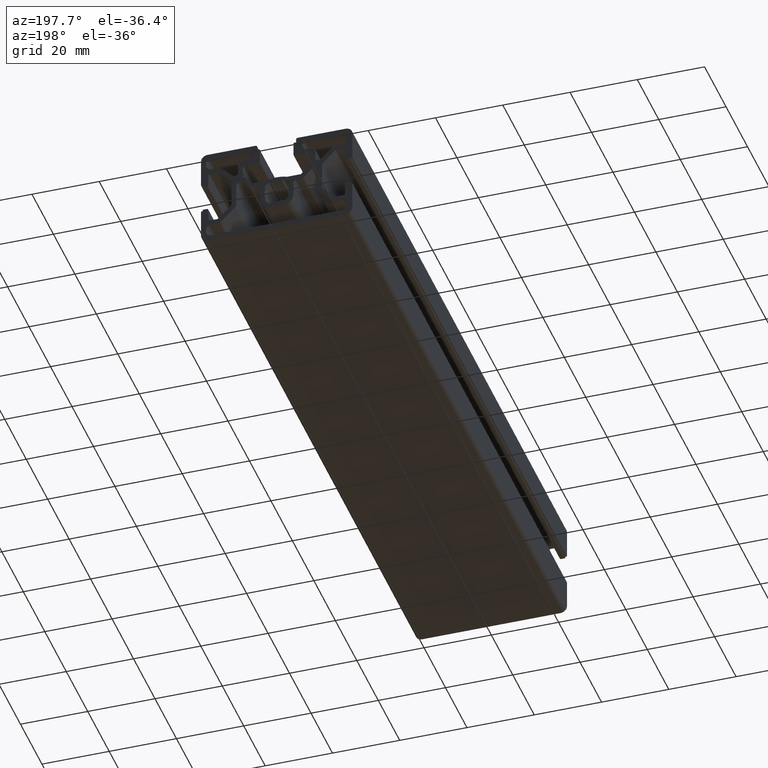
[diagram: clean part render]
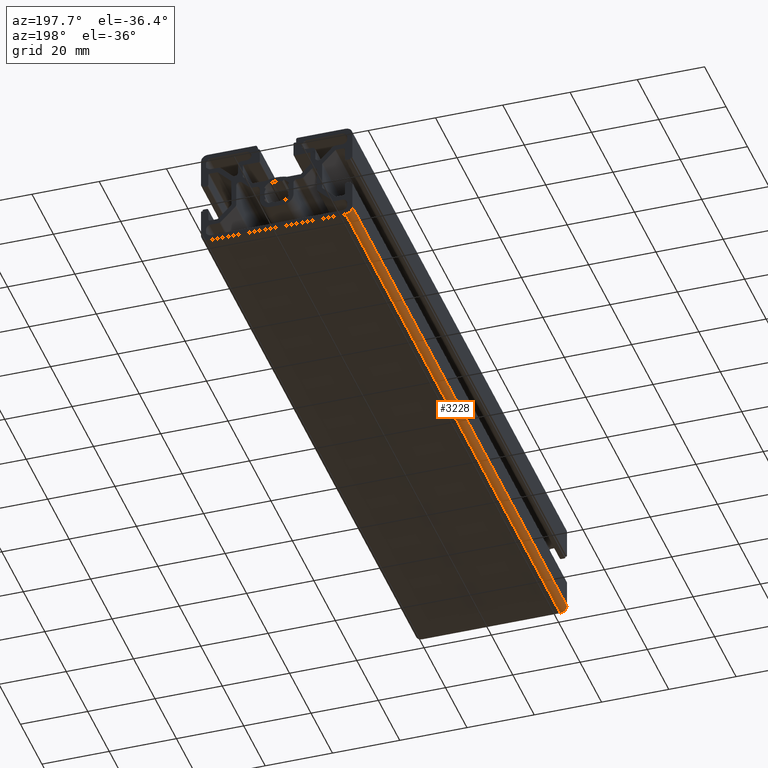
[diagram: same view with one face highlighted and labeled with its STEP entity id]
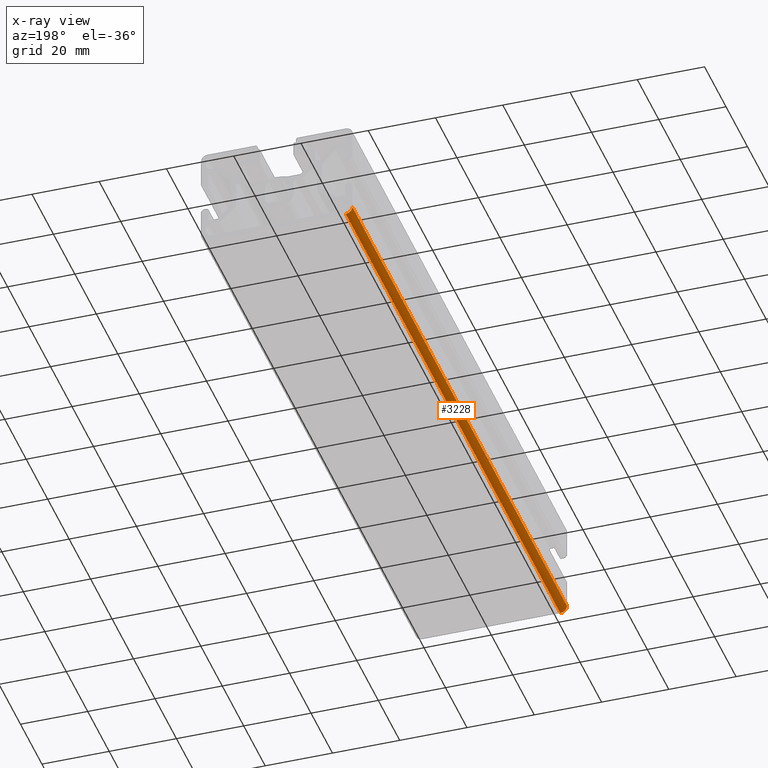
[diagram: x-ray of the same camera — body ghosted, the highlighted face saturated]
A machine part, auxiliary view. The second image highlights one B-rep face of the part: STEP entity #3228.
The next image is the same camera in x-ray: the body ghosted, the highlighted face saturated — about 0% of this face is hidden behind the body in this view.
In plain terms, the highlighted cylindrical surface (edge-blend (fillet) strip) has radius 2 mm, axis along (0, 1, 0).
Its self-contained STEP definition (entity closure, byte-faithful):
#59 = CARTESIAN_POINT ( 'NONE',  ( -20.49999999998073000, 0.0000000000000000000, -15.00002767690059400 ) ) ;
#83 = ORIENTED_EDGE ( 'NONE', *, *, #4450, .T. ) ;
#208 = VERTEX_POINT ( 'NONE', #59 ) ;
#216 = CARTESIAN_POINT ( 'NONE',  ( -20.50000000000330000, 200.0000000000000000, -13.00002767690060100 ) ) ;
#229 = DIRECTION ( 'NONE',  ( 0.0000000000000000000, 1.000000000000000000, 0.0000000000000000000 ) ) ;
#288 = DIRECTION ( 'NONE',  ( 0.0000000000000000000, 0.0000000000000000000, 1.000000000000000000 ) ) ;
#438 = CARTESIAN_POINT ( 'NONE',  ( -20.49999999998070200, 0.0000000000000000000, -15.00002767690059400 ) ) ;
#536 = FACE_OUTER_BOUND ( 'NONE', #696, .T. ) ;
#696 = EDGE_LOOP ( 'NONE', ( #3486, #3562, #83, #1268 ) ) ;
#772 = LINE ( 'NONE', #438, #3086 ) ;
#827 = DIRECTION ( 'NONE',  ( 0.0000000000000000000, 1.000000000000000000, 0.0000000000000000000 ) ) ;
#1018 = DIRECTION ( 'NONE',  ( 0.0000000000000000000, 0.0000000000000000000, 1.000000000000000000 ) ) ;
#1056 = DIRECTION ( 'NONE',  ( 0.0000000000000000000, 1.000000000000000000, 0.0000000000000000000 ) ) ;
#1268 = ORIENTED_EDGE ( 'NONE', *, *, #1389, .F. ) ;
#1337 = VERTEX_POINT ( 'NONE', #2962 ) ;
#1389 = EDGE_CURVE ( 'NONE', #208, #1337, #772, .T. ) ;
#1906 = VERTEX_POINT ( 'NONE', #2175 ) ;
#2117 = AXIS2_PLACEMENT_3D ( 'NONE', #216, #4971, #288 ) ;
#2175 = CARTESIAN_POINT ( 'NONE',  ( -22.50000000000330000, 200.0000000000000000, -13.00002767690060100 ) ) ;
#2807 = VECTOR ( 'NONE', #229, 1000.000000000000000 ) ;
#2906 = EDGE_CURVE ( 'NONE', #5126, #1906, #2942, .T. ) ;
#2942 = LINE ( 'NONE', #4488, #2807 ) ;
#2962 = CARTESIAN_POINT ( 'NONE',  ( -20.49999999998073000, 200.0000000000000000, -15.00002767690059400 ) ) ;
#3086 = VECTOR ( 'NONE', #3403, 1000.000000000000000 ) ;
#3228 = ADVANCED_FACE ( 'NONE', ( #536 ), #4805, .T. ) ;
#3367 = DIRECTION ( 'NONE',  ( 0.0000000000000000000, 0.0000000000000000000, 1.000000000000000000 ) ) ;
#3403 = DIRECTION ( 'NONE',  ( 0.0000000000000000000, 1.000000000000000000, 0.0000000000000000000 ) ) ;
#3486 = ORIENTED_EDGE ( 'NONE', *, *, #5138, .T. ) ;
#3562 = ORIENTED_EDGE ( 'NONE', *, *, #2906, .T. ) ;
#3695 = CIRCLE ( 'NONE', #3900, 2.000000000000000000 ) ;
#3706 = CIRCLE ( 'NONE', #2117, 2.000000000000000000 ) ;
#3900 = AXIS2_PLACEMENT_3D ( 'NONE', #4170, #827, #3367 ) ;
#4170 = CARTESIAN_POINT ( 'NONE',  ( -20.50000000000330000, 0.0000000000000000000, -13.00002767690060100 ) ) ;
#4204 = AXIS2_PLACEMENT_3D ( 'NONE', #4850, #1056, #1018 ) ;
#4450 = EDGE_CURVE ( 'NONE', #1906, #1337, #3706, .T. ) ;
#4488 = CARTESIAN_POINT ( 'NONE',  ( -22.50000000000330000, 0.0000000000000000000, -13.00002767690060100 ) ) ;
#4805 = CYLINDRICAL_SURFACE ( 'NONE', #4204, 2.000000000000000000 ) ;
#4850 = CARTESIAN_POINT ( 'NONE',  ( -20.50000000000330000, 0.0000000000000000000, -13.00002767690060100 ) ) ;
#4971 = DIRECTION ( 'NONE',  ( -0.0000000000000000000, -1.000000000000000000, -0.0000000000000000000 ) ) ;
#5126 = VERTEX_POINT ( 'NONE', #5473 ) ;
#5138 = EDGE_CURVE ( 'NONE', #208, #5126, #3695, .T. ) ;
#5473 = CARTESIAN_POINT ( 'NONE',  ( -22.50000000000330000, 0.0000000000000000000, -13.00002767690058800 ) ) ;